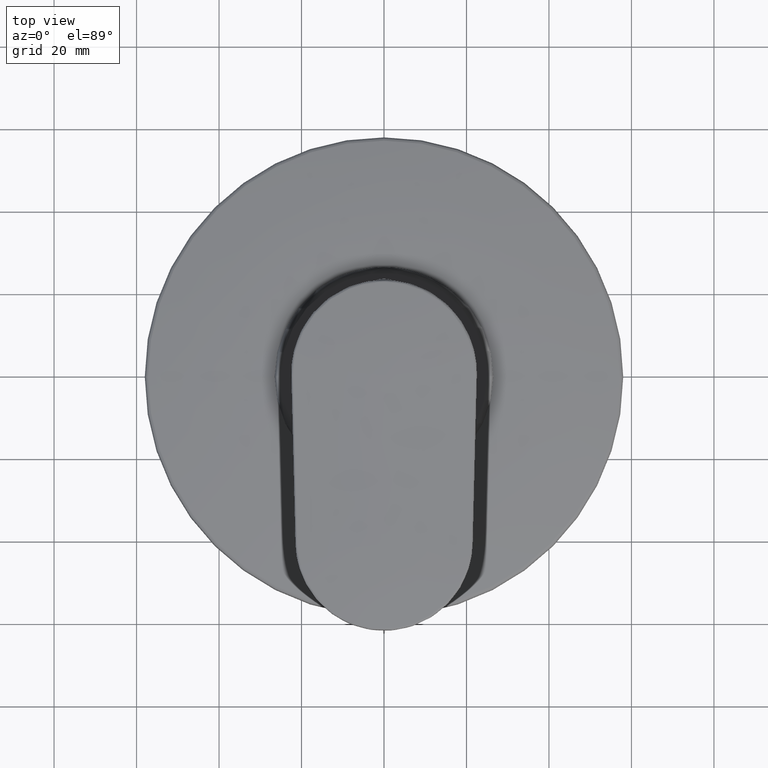
[diagram: clean part render]
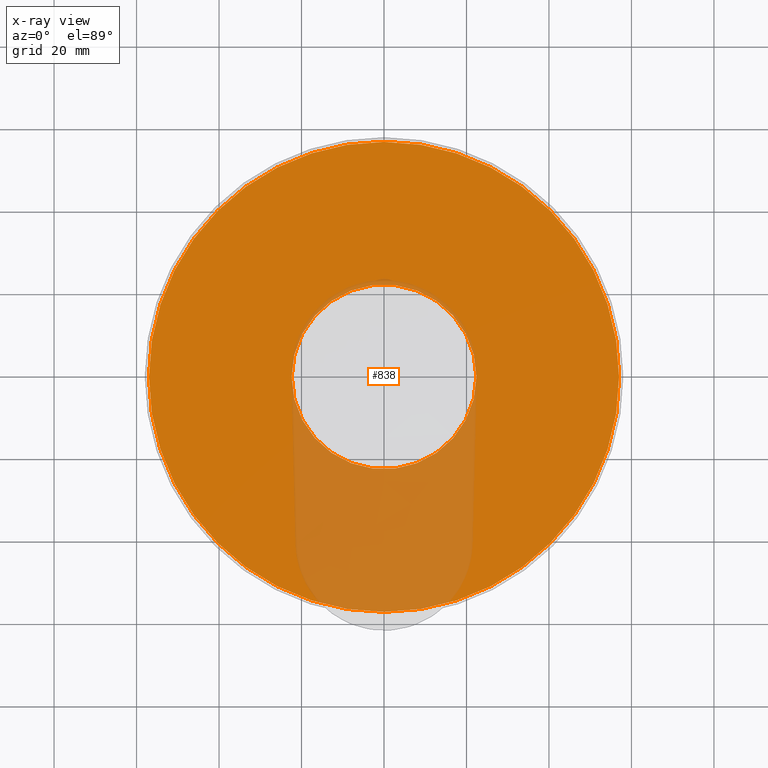
[diagram: x-ray — body ghosted, one internal face saturated and labeled with its STEP entity id]
A machine part, top view, then the same camera in x-ray: the body is ghosted and one INTERNAL B-rep face — a face not visible from any outside direction — is saturated and labeled: STEP entity #838.
In plain terms, the highlighted planar face has unit normal (0, 0, -1).
Its self-contained STEP definition (entity closure, byte-faithful):
#130=CARTESIAN_POINT('',(0.E0,0.E0,4.004267901771E1));
#131=DIRECTION('',(0.E0,0.E0,-1.E0));
#132=DIRECTION('',(1.E0,0.E0,0.E0));
#133=AXIS2_PLACEMENT_3D('',#130,#131,#132);
#148=CARTESIAN_POINT('',(0.E0,0.E0,4.004267901771E1));
#149=DIRECTION('',(0.E0,0.E0,-1.E0));
#150=DIRECTION('',(-1.E0,0.E0,0.E0));
#151=AXIS2_PLACEMENT_3D('',#148,#149,#150);
#173=CARTESIAN_POINT('',(0.E0,0.E0,4.004267901771E1));
#174=DIRECTION('',(0.E0,0.E0,1.E0));
#175=DIRECTION('',(-1.E0,0.E0,0.E0));
#176=AXIS2_PLACEMENT_3D('',#173,#174,#175);
#183=CARTESIAN_POINT('',(0.E0,0.E0,4.004267901771E1));
#184=DIRECTION('',(0.E0,0.E0,1.E0));
#185=DIRECTION('',(1.E0,0.E0,0.E0));
#186=AXIS2_PLACEMENT_3D('',#183,#184,#185);
#489=CARTESIAN_POINT('',(-2.24E1,0.E0,4.004267901771E1));
#490=CARTESIAN_POINT('',(2.24E1,0.E0,4.004267901771E1));
#491=VERTEX_POINT('',#489);
#492=VERTEX_POINT('',#490);
#493=CARTESIAN_POINT('',(-5.7E1,3.229358171659E-14,4.004267901771E1));
#494=CARTESIAN_POINT('',(5.7E1,-2.531307496145E-14,4.004267901771E1));
#495=VERTEX_POINT('',#493);
#496=VERTEX_POINT('',#494);
#822=CARTESIAN_POINT('',(0.E0,0.E0,4.004267901771E1));
#823=DIRECTION('',(0.E0,0.E0,-1.E0));
#824=DIRECTION('',(1.E0,0.E0,0.E0));
#825=AXIS2_PLACEMENT_3D('',#822,#823,#824);
#826=PLANE('',#825);
#828=ORIENTED_EDGE('',*,*,#827,.T.);
#829=ORIENTED_EDGE('',*,*,#805,.T.);
#830=EDGE_LOOP('',(#828,#829));
#831=FACE_OUTER_BOUND('',#830,.F.);
#833=ORIENTED_EDGE('',*,*,#832,.T.);
#835=ORIENTED_EDGE('',*,*,#834,.T.);
#836=EDGE_LOOP('',(#833,#835));
#837=FACE_BOUND('',#836,.F.);
#838=ADVANCED_FACE('',(#831,#837),#826,.F.);
#134=CIRCLE('',#133,5.7E1);
#152=CIRCLE('',#151,5.7E1);
#177=CIRCLE('',#176,2.24E1);
#187=CIRCLE('',#186,2.24E1);
#805=EDGE_CURVE('',#496,#495,#134,.T.);
#827=EDGE_CURVE('',#495,#496,#152,.T.);
#832=EDGE_CURVE('',#491,#492,#177,.T.);
#834=EDGE_CURVE('',#492,#491,#187,.T.);